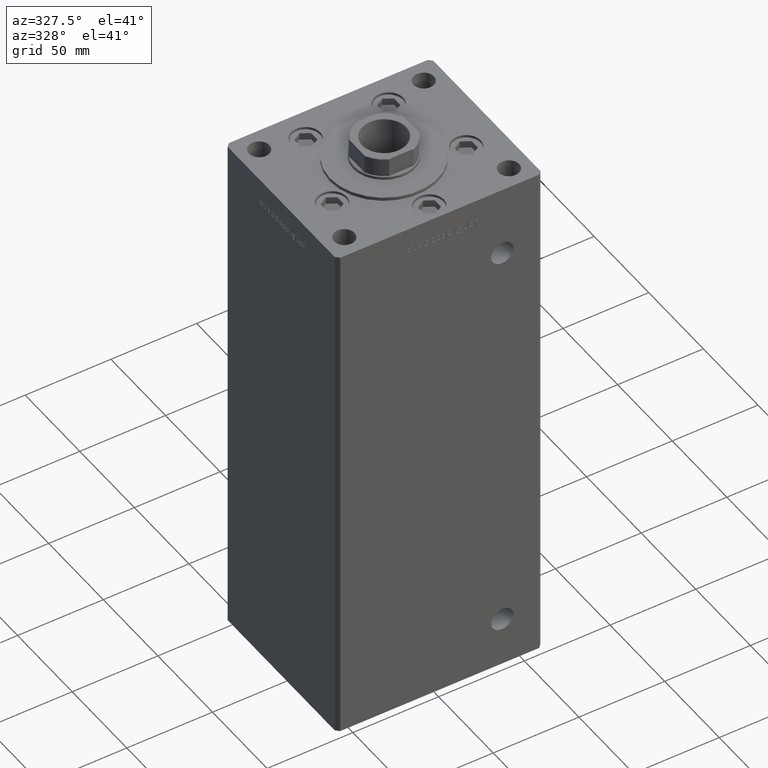
[diagram: clean part render]
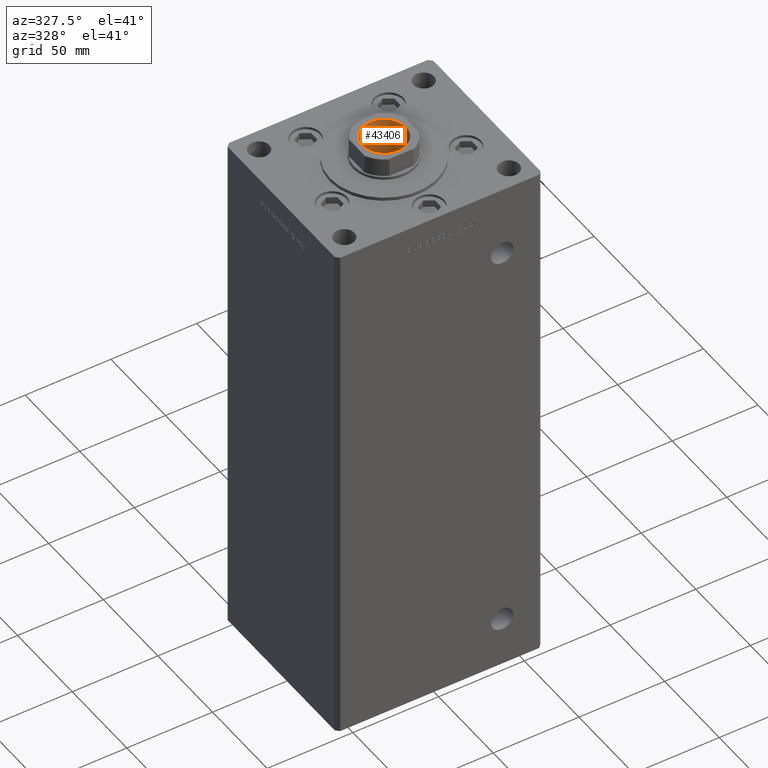
[diagram: same view with one face highlighted and labeled with its STEP entity id]
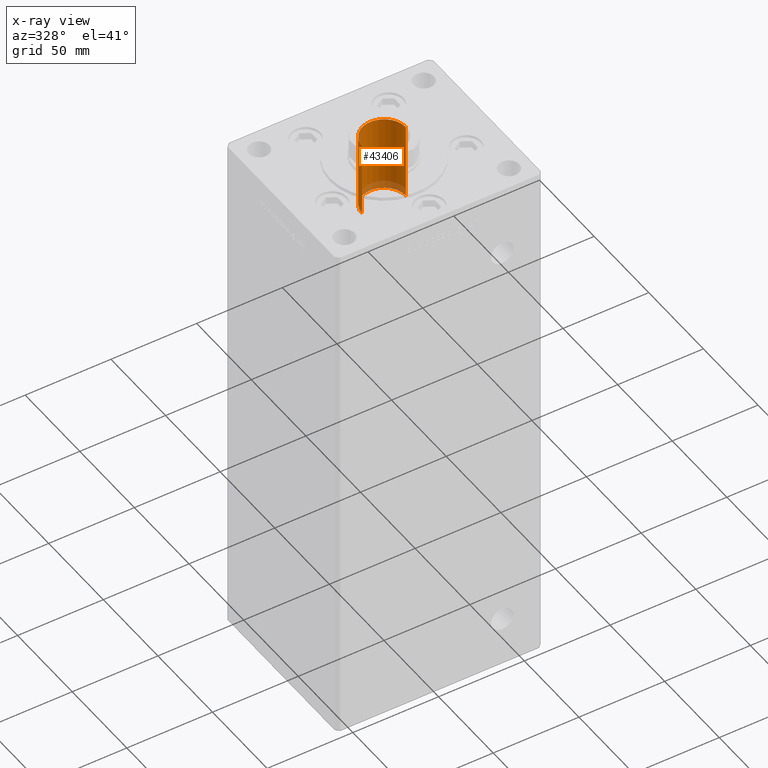
[diagram: x-ray of the same camera — body ghosted, the highlighted face saturated]
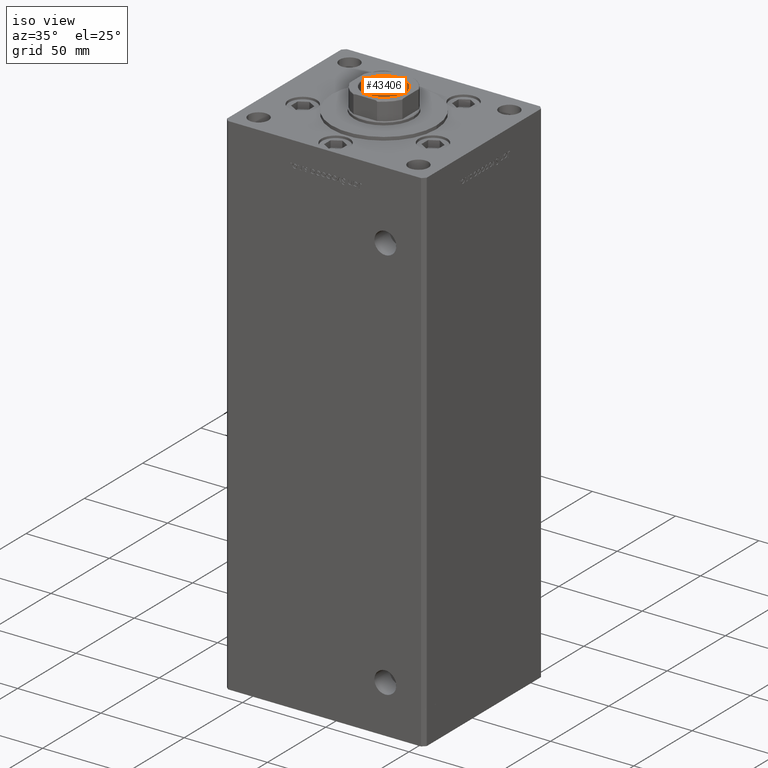
[diagram: same view with one face highlighted and labeled with its STEP entity id]
A machine part, auxiliary view. The second image highlights one B-rep face of the part: STEP entity #43406.
The next image is the same camera in x-ray: the body ghosted, the highlighted face saturated — about 10% of this face is hidden behind the body in this view.
A second angle (iso view) of the same face is appended — the face is thin or edge-on in the first view.
In plain terms, the highlighted cylindrical surface (edge-blend (fillet) strip) has radius 12.75 mm, axis along (0, 0, 1).
Its self-contained STEP definition (entity closure, byte-faithful):
#3372 = EDGE_CURVE ( 'NONE', #34907, #12246, #41968, .T. ) ;
#3397 = LINE ( 'NONE', #15763, #46198 ) ;
#3705 = CARTESIAN_POINT ( 'NONE',  ( 0.000000000000000000, 0.000000000000000000, 289.2500000000000000 ) ) ;
#7755 = DIRECTION ( 'NONE',  ( 1.000000000000000000, 0.000000000000000000, 0.000000000000000000 ) ) ;
#9406 = VERTEX_POINT ( 'NONE', #34974 ) ;
#11236 = DIRECTION ( 'NONE',  ( 1.000000000000000000, 0.000000000000000000, 0.000000000000000000 ) ) ;
#11755 = VERTEX_POINT ( 'NONE', #42782 ) ;
#11801 = DIRECTION ( 'NONE',  ( -0.000000000000000000, -0.000000000000000000, 1.000000000000000000 ) ) ;
#12246 = VERTEX_POINT ( 'NONE', #49743 ) ;
#15763 = CARTESIAN_POINT ( 'NONE',  ( 12.74999999999999467, 0.000000000000000000, 289.2500000000000000 ) ) ;
#16071 = ORIENTED_EDGE ( 'NONE', *, *, #21436, .T. ) ;
#17592 = VECTOR ( 'NONE', #11801, 1000.000000000000000 ) ;
#18555 = CARTESIAN_POINT ( 'NONE',  ( 12.74999999999999112, 0.000000000000000000, 244.2500000000000284 ) ) ;
#21436 = EDGE_CURVE ( 'NONE', #9406, #11755, #43474, .T. ) ;
#26230 = EDGE_LOOP ( 'NONE', ( #27237, #32550, #41207, #16071 ) ) ;
#27237 = ORIENTED_EDGE ( 'NONE', *, *, #33481, .F. ) ;
#27809 = CARTESIAN_POINT ( 'NONE',  ( 0.000000000000000000, 0.000000000000000000, 288.9499999999999318 ) ) ;
#30073 = FACE_OUTER_BOUND ( 'NONE', #26230, .T. ) ;
#30833 = AXIS2_PLACEMENT_3D ( 'NONE', #27809, #43879, #7755 ) ;
#31053 = LINE ( 'NONE', #47375, #17592 ) ;
#32550 = ORIENTED_EDGE ( 'NONE', *, *, #3372, .F. ) ;
#33481 = EDGE_CURVE ( 'NONE', #12246, #11755, #31053, .T. ) ;
#34702 = AXIS2_PLACEMENT_3D ( 'NONE', #3705, #36113, #44273 ) ;
#34907 = VERTEX_POINT ( 'NONE', #18555 ) ;
#34974 = CARTESIAN_POINT ( 'NONE',  ( 12.74999999999999467, 0.000000000000000000, 288.9499999999999318 ) ) ;
#36113 = DIRECTION ( 'NONE',  ( -0.000000000000000000, -0.000000000000000000, 1.000000000000000000 ) ) ;
#37756 = AXIS2_PLACEMENT_3D ( 'NONE', #47878, #44193, #11236 ) ;
#41207 = ORIENTED_EDGE ( 'NONE', *, *, #48646, .T. ) ;
#41968 = CIRCLE ( 'NONE', #37756, 12.74999999999999112 ) ;
#42782 = CARTESIAN_POINT ( 'NONE',  ( -12.74999999999999467, 1.561424668912874519E-15, 288.9499999999999318 ) ) ;
#43406 = ADVANCED_FACE ( 'NONE', ( #30073 ), #46144, .F. ) ;
#43474 = CIRCLE ( 'NONE', #30833, 12.74999999999999467 ) ;
#43879 = DIRECTION ( 'NONE',  ( 0.000000000000000000, 0.000000000000000000, 1.000000000000000000 ) ) ;
#44193 = DIRECTION ( 'NONE',  ( -0.000000000000000000, -0.000000000000000000, 1.000000000000000000 ) ) ;
#44273 = DIRECTION ( 'NONE',  ( 1.000000000000000000, 0.000000000000000000, 0.000000000000000000 ) ) ;
#46144 = CYLINDRICAL_SURFACE ( 'NONE', #34702, 12.74999999999999467 ) ;
#46198 = VECTOR ( 'NONE', #47391, 1000.000000000000000 ) ;
#47375 = CARTESIAN_POINT ( 'NONE',  ( -12.74999999999999467, 1.561424668912874519E-15, 289.2500000000000000 ) ) ;
#47391 = DIRECTION ( 'NONE',  ( -0.000000000000000000, -0.000000000000000000, 1.000000000000000000 ) ) ;
#47878 = CARTESIAN_POINT ( 'NONE',  ( 0.000000000000000000, 0.000000000000000000, 244.2500000000000284 ) ) ;
#48646 = EDGE_CURVE ( 'NONE', #34907, #9406, #3397, .T. ) ;
#49743 = CARTESIAN_POINT ( 'NONE',  ( -12.74999999999999112, 1.561424668912874125E-15, 244.2500000000000284 ) ) ;